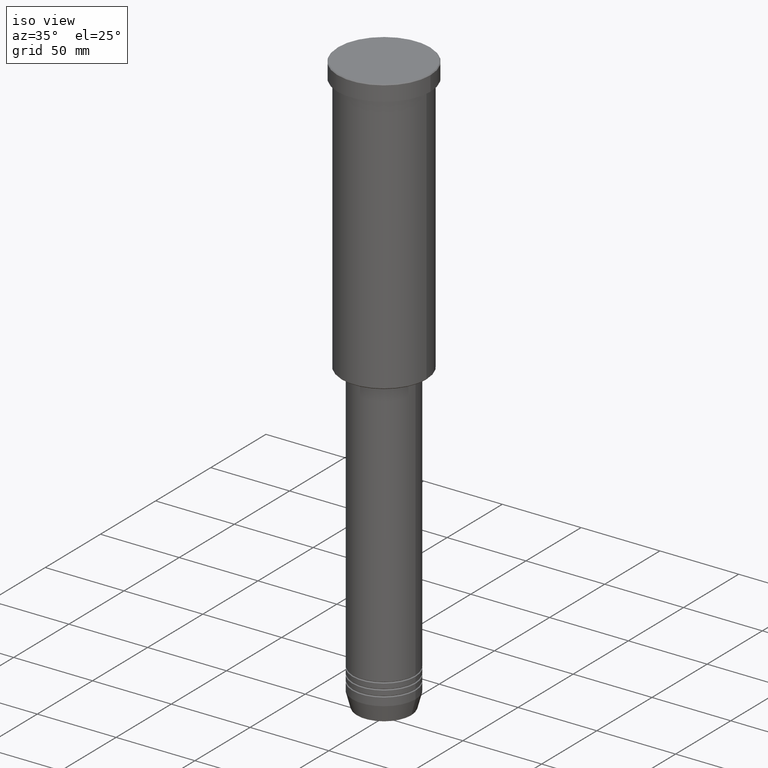
[diagram: clean part render]
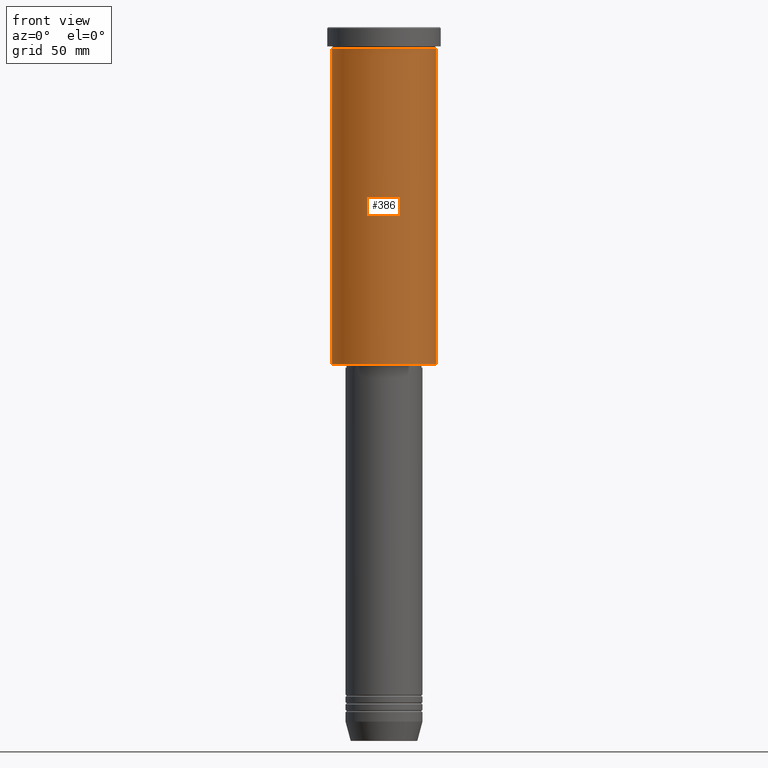
[diagram: tour spotlight — one face highlighted and labeled with its STEP entity id]
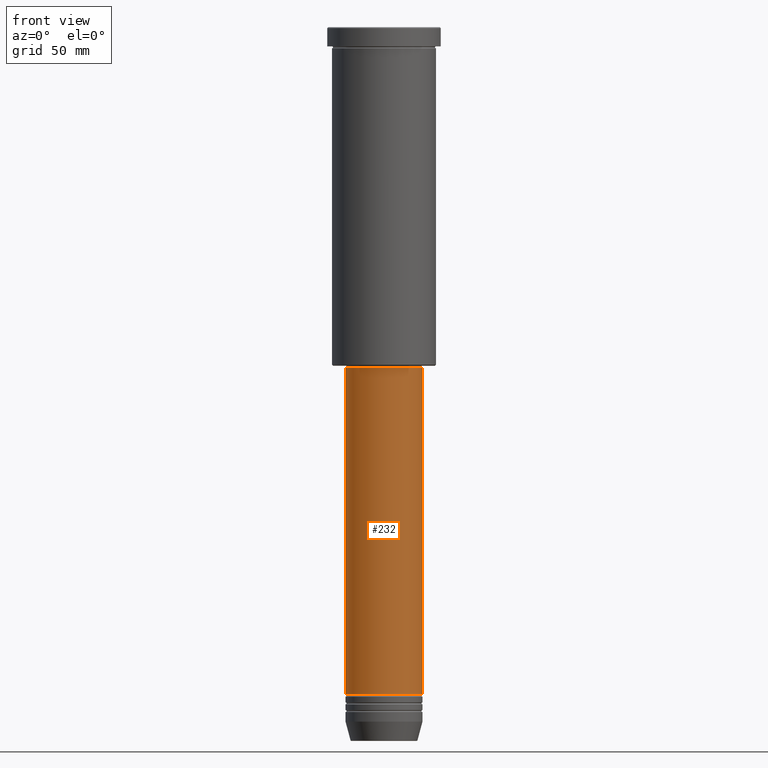
[diagram: tour spotlight — one face highlighted and labeled with its STEP entity id]
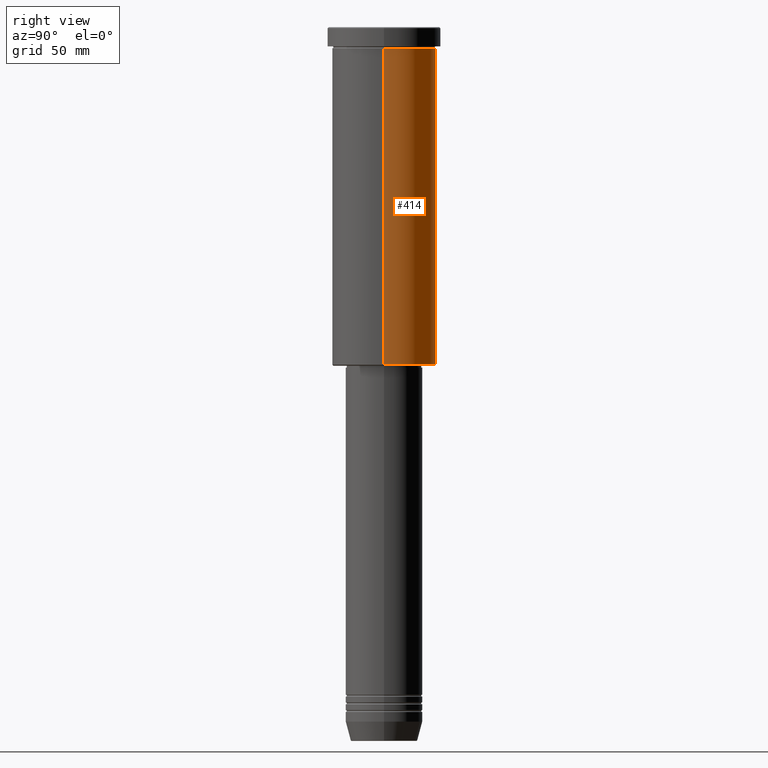
[diagram: tour spotlight — one face highlighted and labeled with its STEP entity id]
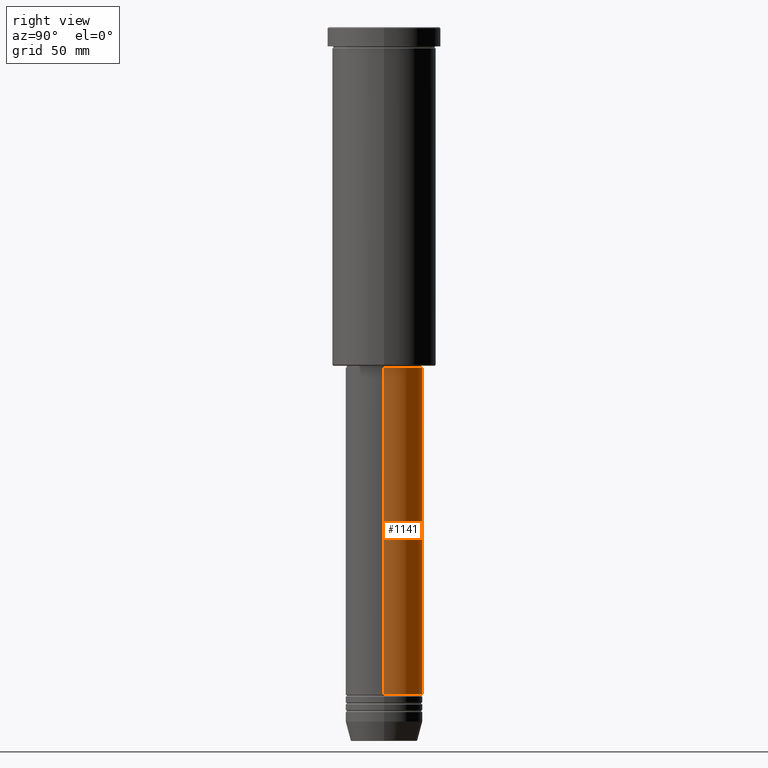
[diagram: tour spotlight — one face highlighted and labeled with its STEP entity id]
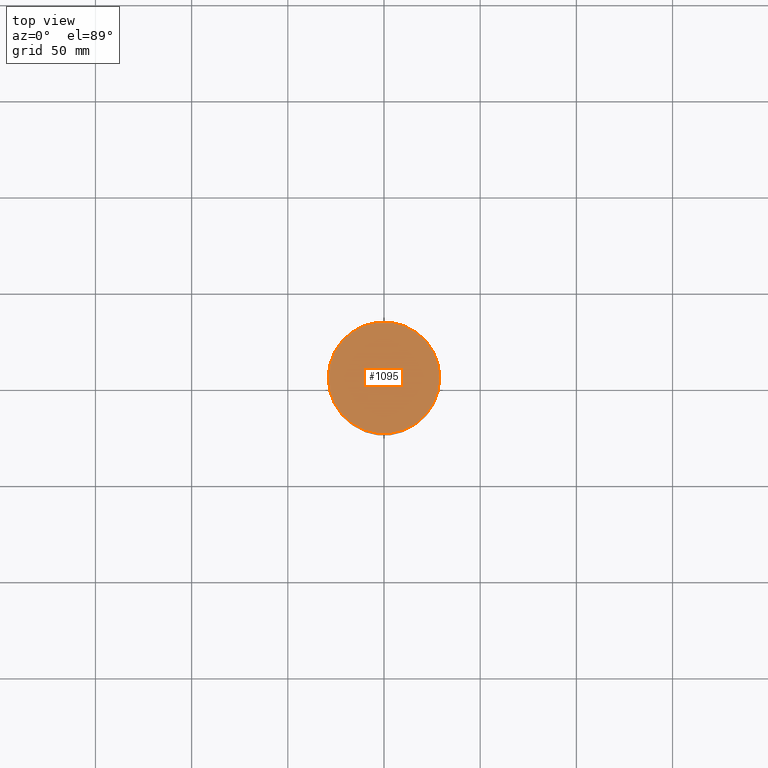
[diagram: tour spotlight — one face highlighted and labeled with its STEP entity id]
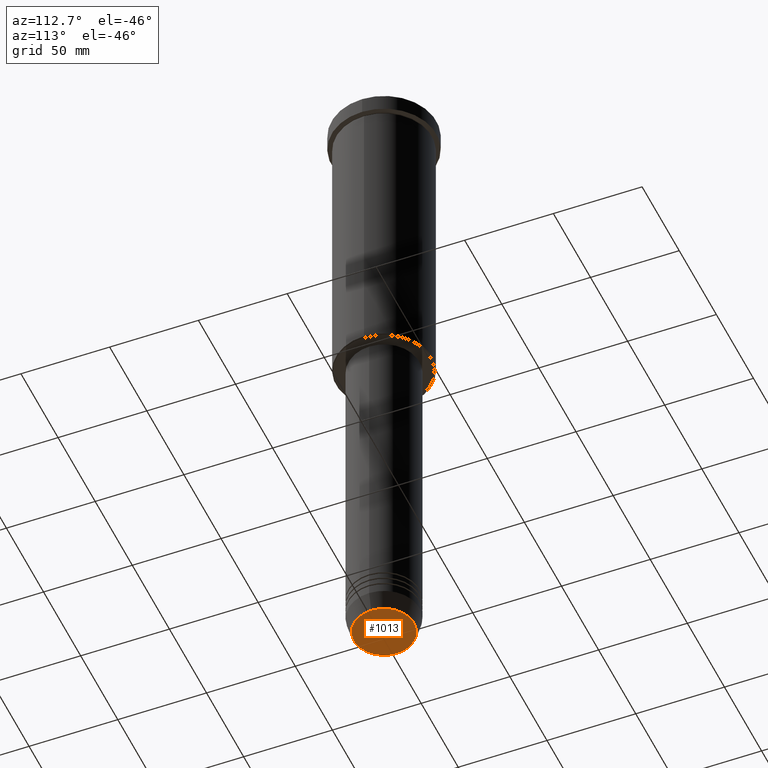
[diagram: tour spotlight — one face highlighted and labeled with its STEP entity id]
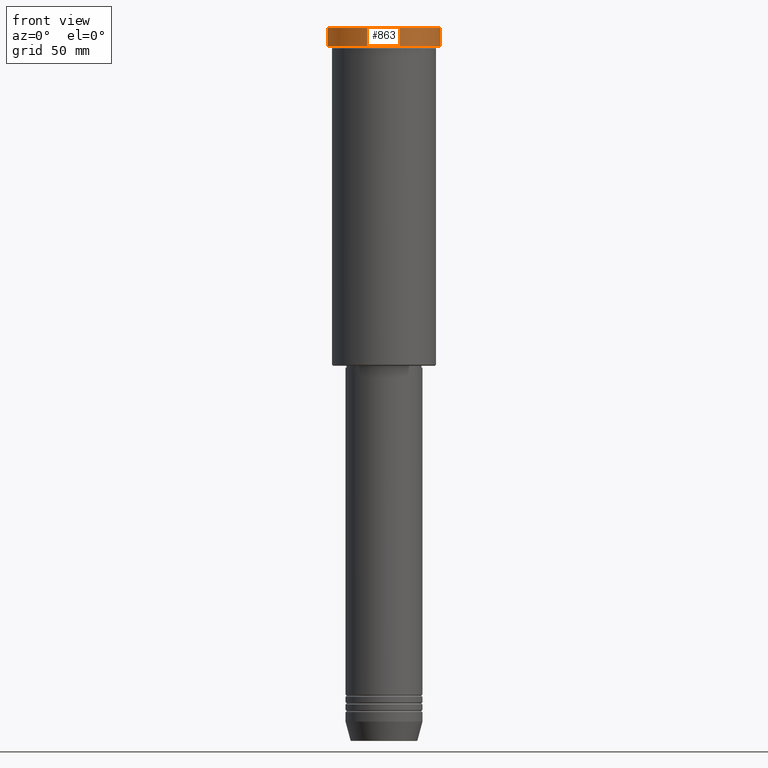
[diagram: tour spotlight — one face highlighted and labeled with its STEP entity id]
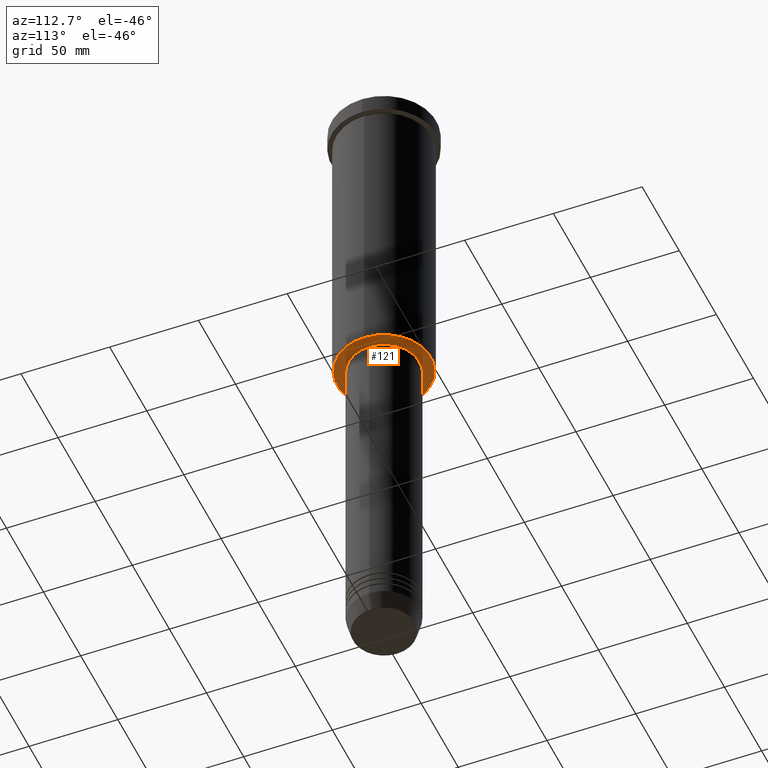
[diagram: tour spotlight — one face highlighted and labeled with its STEP entity id]
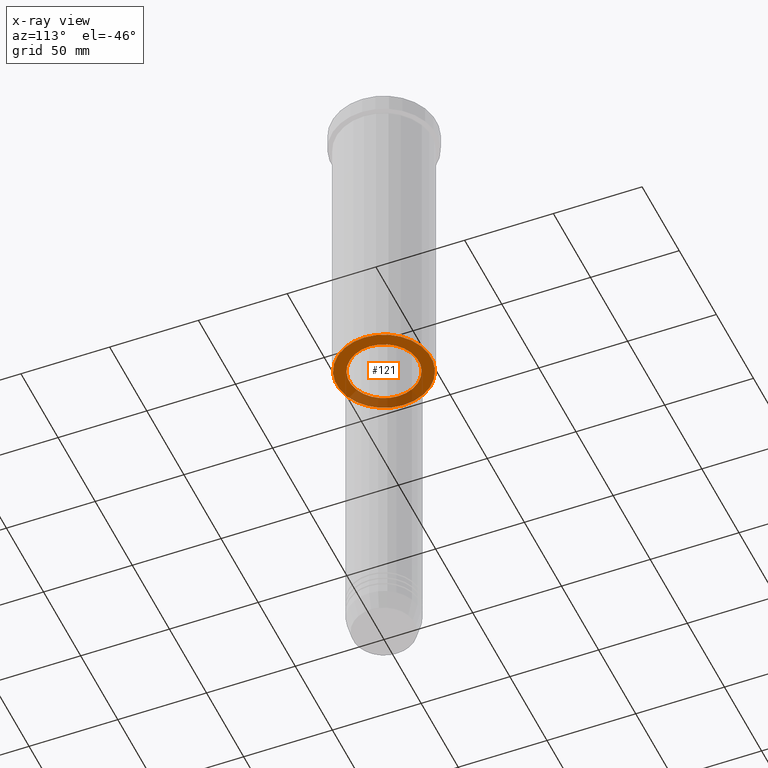
[diagram: x-ray of the same camera — body ghosted, this tour face saturated]
A machine part: a face-by-face anatomy tour. The part has 43 B-rep faces; the first image is the clean iso view, then the 8 largest visible faces are spotlighted one at a time (largest first), each with its STEP entity span.

Face 1 — front view, entity #386. In plain terms, the highlighted cylindrical surface (partial cylindrical patch) has radius 27 mm, axis along (-0, -0, 1).
Definition (entity closure, byte-faithful):
#10 = CARTESIAN_POINT ( 'NONE',  ( 0.000000000000000000, 0.000000000000000000, -175.4999999999999716 ) ) ;
#23 = CIRCLE ( 'NONE', #630, 27.00000000000000355 ) ;
#53 = VECTOR ( 'NONE', #1098, 1000.000000000000000 ) ;
#78 = VERTEX_POINT ( 'NONE', #703 ) ;
#82 = VERTEX_POINT ( 'NONE', #619 ) ;
#140 = CIRCLE ( 'NONE', #791, 27.00000000000000355 ) ;
#202 = FACE_OUTER_BOUND ( 'NONE', #883, .T. ) ;
#274 = ORIENTED_EDGE ( 'NONE', *, *, #714, .T. ) ;
#314 = DIRECTION ( 'NONE',  ( -0.000000000000000000, -0.000000000000000000, 1.000000000000000000 ) ) ;
#319 = AXIS2_PLACEMENT_3D ( 'NONE', #1091, #314, #1002 ) ;
#362 = DIRECTION ( 'NONE',  ( -0.000000000000000000, -0.000000000000000000, 1.000000000000000000 ) ) ;
#383 = LINE ( 'NONE', #734, #53 ) ;
#386 = ADVANCED_FACE ( 'NONE', ( #202 ), #653, .T. ) ;
#427 = EDGE_CURVE ( 'NONE', #1161, #489, #383, .T. ) ;
#438 = VECTOR ( 'NONE', #902, 1000.000000000000000 ) ;
#444 = DIRECTION ( 'NONE',  ( 1.000000000000000000, 0.000000000000000000, 0.000000000000000000 ) ) ;
#474 = DIRECTION ( 'NONE',  ( -1.000000000000000000, 0.000000000000000000, 0.000000000000000000 ) ) ;
#489 = VERTEX_POINT ( 'NONE', #1021 ) ;
#561 = DIRECTION ( 'NONE',  ( -0.000000000000000000, -0.000000000000000000, 1.000000000000000000 ) ) ;
#589 = ORIENTED_EDGE ( 'NONE', *, *, #427, .F. ) ;
#619 = CARTESIAN_POINT ( 'NONE',  ( 27.00000000000000355, 0.000000000000000000, -10.99999999999999289 ) ) ;
#630 = AXIS2_PLACEMENT_3D ( 'NONE', #1169, #362, #444 ) ;
#653 = CYLINDRICAL_SURFACE ( 'NONE', #319, 27.00000000000000355 ) ;
#703 = CARTESIAN_POINT ( 'NONE',  ( 27.00000000000000355, 0.000000000000000000, -175.4999999999999716 ) ) ;
#714 = EDGE_CURVE ( 'NONE', #1161, #78, #140, .T. ) ;
#729 = CARTESIAN_POINT ( 'NONE',  ( 27.00000000000000355, 0.000000000000000000, 0.000000000000000000 ) ) ;
#734 = CARTESIAN_POINT ( 'NONE',  ( -27.00000000000000355, 3.306546357697854128E-15, 0.000000000000000000 ) ) ;
#788 = EDGE_CURVE ( 'NONE', #78, #82, #867, .T. ) ;
#791 = AXIS2_PLACEMENT_3D ( 'NONE', #10, #561, #474 ) ;
#867 = LINE ( 'NONE', #729, #438 ) ;
#883 = EDGE_LOOP ( 'NONE', ( #589, #274, #1072, #1155 ) ) ;
#902 = DIRECTION ( 'NONE',  ( -0.000000000000000000, -0.000000000000000000, 1.000000000000000000 ) ) ;
#912 = CARTESIAN_POINT ( 'NONE',  ( -27.00000000000000355, 3.306546357697854128E-15, -175.4999999999999716 ) ) ;
#923 = EDGE_CURVE ( 'NONE', #489, #82, #23, .T. ) ;
#1002 = DIRECTION ( 'NONE',  ( 1.000000000000000000, 0.000000000000000000, 0.000000000000000000 ) ) ;
#1021 = CARTESIAN_POINT ( 'NONE',  ( -27.00000000000000355, 3.306546357697854128E-15, -10.99999999999999289 ) ) ;
#1072 = ORIENTED_EDGE ( 'NONE', *, *, #788, .T. ) ;
#1091 = CARTESIAN_POINT ( 'NONE',  ( 0.000000000000000000, 0.000000000000000000, 0.000000000000000000 ) ) ;
#1098 = DIRECTION ( 'NONE',  ( -0.000000000000000000, -0.000000000000000000, 1.000000000000000000 ) ) ;
#1155 = ORIENTED_EDGE ( 'NONE', *, *, #923, .F. ) ;
#1161 = VERTEX_POINT ( 'NONE', #912 ) ;
#1169 = CARTESIAN_POINT ( 'NONE',  ( 0.000000000000000000, 0.000000000000000000, -10.99999999999999289 ) ) ;

Face 2 — front view, entity #232. In plain terms, the highlighted cylindrical surface (partial cylindrical patch) has radius 20 mm, axis along (-0, -0, 1).
Definition (entity closure, byte-faithful):
#34 = CARTESIAN_POINT ( 'NONE',  ( -19.99999999999999645, 2.449293598294706119E-15, -176.9999999999999147 ) ) ;
#80 = DIRECTION ( 'NONE',  ( 1.000000000000000000, 0.000000000000000000, 0.000000000000000000 ) ) ;
#84 = ORIENTED_EDGE ( 'NONE', *, *, #1109, .F. ) ;
#111 = CARTESIAN_POINT ( 'NONE',  ( -19.99999999999999645, 2.449293598294706119E-15, 0.000000000000000000 ) ) ;
#127 = DIRECTION ( 'NONE',  ( -0.000000000000000000, -0.000000000000000000, 1.000000000000000000 ) ) ;
#158 = CYLINDRICAL_SURFACE ( 'NONE', #590, 19.99999999999999645 ) ;
#181 = CARTESIAN_POINT ( 'NONE',  ( 0.000000000000000000, 0.000000000000000000, 0.000000000000000000 ) ) ;
#215 = DIRECTION ( 'NONE',  ( -0.000000000000000000, -0.000000000000000000, 1.000000000000000000 ) ) ;
#216 = CARTESIAN_POINT ( 'NONE',  ( 0.000000000000000000, 0.000000000000000000, -176.9999999999999147 ) ) ;
#232 = ADVANCED_FACE ( 'NONE', ( #436 ), #158, .T. ) ;
#255 = CARTESIAN_POINT ( 'NONE',  ( 20.00000000000000000, 0.000000000000000000, -346.9999999999998863 ) ) ;
#300 = AXIS2_PLACEMENT_3D ( 'NONE', #216, #127, #472 ) ;
#372 = CIRCLE ( 'NONE', #1030, 20.00000000000000000 ) ;
#425 = VECTOR ( 'NONE', #1108, 1000.000000000000000 ) ;
#436 = FACE_OUTER_BOUND ( 'NONE', #733, .T. ) ;
#456 = EDGE_CURVE ( 'NONE', #959, #764, #660, .T. ) ;
#472 = DIRECTION ( 'NONE',  ( 1.000000000000000000, 0.000000000000000000, 0.000000000000000000 ) ) ;
#534 = CIRCLE ( 'NONE', #300, 19.99999999999999645 ) ;
#538 = DIRECTION ( 'NONE',  ( 1.000000000000000000, 0.000000000000000000, 0.000000000000000000 ) ) ;
#590 = AXIS2_PLACEMENT_3D ( 'NONE', #181, #978, #538 ) ;
#613 = ORIENTED_EDGE ( 'NONE', *, *, #1063, .F. ) ;
#617 = CARTESIAN_POINT ( 'NONE',  ( 0.000000000000000000, 0.000000000000000000, -346.9999999999998863 ) ) ;
#641 = ORIENTED_EDGE ( 'NONE', *, *, #456, .T. ) ;
#660 = LINE ( 'NONE', #1022, #721 ) ;
#721 = VECTOR ( 'NONE', #215, 1000.000000000000000 ) ;
#733 = EDGE_LOOP ( 'NONE', ( #613, #1016, #641, #84 ) ) ;
#764 = VERTEX_POINT ( 'NONE', #935 ) ;
#768 = VERTEX_POINT ( 'NONE', #34 ) ;
#935 = CARTESIAN_POINT ( 'NONE',  ( 19.99999999999999645, 0.000000000000000000, -176.9999999999999147 ) ) ;
#946 = VERTEX_POINT ( 'NONE', #1065 ) ;
#959 = VERTEX_POINT ( 'NONE', #255 ) ;
#973 = DIRECTION ( 'NONE',  ( -0.000000000000000000, -0.000000000000000000, 1.000000000000000000 ) ) ;
#978 = DIRECTION ( 'NONE',  ( -0.000000000000000000, -0.000000000000000000, 1.000000000000000000 ) ) ;
#1003 = LINE ( 'NONE', #111, #425 ) ;
#1016 = ORIENTED_EDGE ( 'NONE', *, *, #1020, .T. ) ;
#1020 = EDGE_CURVE ( 'NONE', #946, #959, #372, .T. ) ;
#1022 = CARTESIAN_POINT ( 'NONE',  ( 19.99999999999999645, 0.000000000000000000, 0.000000000000000000 ) ) ;
#1030 = AXIS2_PLACEMENT_3D ( 'NONE', #617, #973, #80 ) ;
#1063 = EDGE_CURVE ( 'NONE', #946, #768, #1003, .T. ) ;
#1065 = CARTESIAN_POINT ( 'NONE',  ( -20.00000000000000000, 2.449293598294706513E-15, -346.9999999999998863 ) ) ;
#1108 = DIRECTION ( 'NONE',  ( -0.000000000000000000, -0.000000000000000000, 1.000000000000000000 ) ) ;
#1109 = EDGE_CURVE ( 'NONE', #768, #764, #534, .T. ) ;

Face 3 — right view, entity #414. In plain terms, the highlighted cylindrical surface (partial cylindrical patch) has radius 27 mm, axis along (-0, -0, 1).
Definition (entity closure, byte-faithful):
#53 = VECTOR ( 'NONE', #1098, 1000.000000000000000 ) ;
#78 = VERTEX_POINT ( 'NONE', #703 ) ;
#82 = VERTEX_POINT ( 'NONE', #619 ) ;
#97 = CARTESIAN_POINT ( 'NONE',  ( 0.000000000000000000, 0.000000000000000000, -10.99999999999999289 ) ) ;
#137 = ORIENTED_EDGE ( 'NONE', *, *, #618, .T. ) ;
#151 = AXIS2_PLACEMENT_3D ( 'NONE', #97, #271, #545 ) ;
#167 = EDGE_CURVE ( 'NONE', #82, #489, #647, .T. ) ;
#198 = CIRCLE ( 'NONE', #683, 27.00000000000000355 ) ;
#271 = DIRECTION ( 'NONE',  ( -0.000000000000000000, -0.000000000000000000, 1.000000000000000000 ) ) ;
#339 = DIRECTION ( 'NONE',  ( -0.000000000000000000, -0.000000000000000000, 1.000000000000000000 ) ) ;
#383 = LINE ( 'NONE', #734, #53 ) ;
#396 = FACE_OUTER_BOUND ( 'NONE', #581, .T. ) ;
#414 = ADVANCED_FACE ( 'NONE', ( #396 ), #823, .T. ) ;
#427 = EDGE_CURVE ( 'NONE', #1161, #489, #383, .T. ) ;
#438 = VECTOR ( 'NONE', #902, 1000.000000000000000 ) ;
#489 = VERTEX_POINT ( 'NONE', #1021 ) ;
#490 = CARTESIAN_POINT ( 'NONE',  ( 0.000000000000000000, 0.000000000000000000, 0.000000000000000000 ) ) ;
#545 = DIRECTION ( 'NONE',  ( 1.000000000000000000, 0.000000000000000000, 0.000000000000000000 ) ) ;
#581 = EDGE_LOOP ( 'NONE', ( #137, #757, #878, #1154 ) ) ;
#586 = DIRECTION ( 'NONE',  ( -1.000000000000000000, 0.000000000000000000, 0.000000000000000000 ) ) ;
#618 = EDGE_CURVE ( 'NONE', #78, #1161, #198, .T. ) ;
#619 = CARTESIAN_POINT ( 'NONE',  ( 27.00000000000000355, 0.000000000000000000, -10.99999999999999289 ) ) ;
#647 = CIRCLE ( 'NONE', #151, 27.00000000000000355 ) ;
#683 = AXIS2_PLACEMENT_3D ( 'NONE', #766, #339, #586 ) ;
#703 = CARTESIAN_POINT ( 'NONE',  ( 27.00000000000000355, 0.000000000000000000, -175.4999999999999716 ) ) ;
#729 = CARTESIAN_POINT ( 'NONE',  ( 27.00000000000000355, 0.000000000000000000, 0.000000000000000000 ) ) ;
#734 = CARTESIAN_POINT ( 'NONE',  ( -27.00000000000000355, 3.306546357697854128E-15, 0.000000000000000000 ) ) ;
#757 = ORIENTED_EDGE ( 'NONE', *, *, #427, .T. ) ;
#766 = CARTESIAN_POINT ( 'NONE',  ( 0.000000000000000000, 0.000000000000000000, -175.4999999999999716 ) ) ;
#788 = EDGE_CURVE ( 'NONE', #78, #82, #867, .T. ) ;
#823 = CYLINDRICAL_SURFACE ( 'NONE', #985, 27.00000000000000355 ) ;
#850 = DIRECTION ( 'NONE',  ( -0.000000000000000000, -0.000000000000000000, 1.000000000000000000 ) ) ;
#867 = LINE ( 'NONE', #729, #438 ) ;
#878 = ORIENTED_EDGE ( 'NONE', *, *, #167, .F. ) ;
#902 = DIRECTION ( 'NONE',  ( -0.000000000000000000, -0.000000000000000000, 1.000000000000000000 ) ) ;
#912 = CARTESIAN_POINT ( 'NONE',  ( -27.00000000000000355, 3.306546357697854128E-15, -175.4999999999999716 ) ) ;
#921 = DIRECTION ( 'NONE',  ( 1.000000000000000000, 0.000000000000000000, 0.000000000000000000 ) ) ;
#985 = AXIS2_PLACEMENT_3D ( 'NONE', #490, #850, #921 ) ;
#1021 = CARTESIAN_POINT ( 'NONE',  ( -27.00000000000000355, 3.306546357697854128E-15, -10.99999999999999289 ) ) ;
#1098 = DIRECTION ( 'NONE',  ( -0.000000000000000000, -0.000000000000000000, 1.000000000000000000 ) ) ;
#1154 = ORIENTED_EDGE ( 'NONE', *, *, #788, .F. ) ;
#1161 = VERTEX_POINT ( 'NONE', #912 ) ;

Face 4 — right view, entity #1141. In plain terms, the highlighted cylindrical surface (partial cylindrical patch) has radius 20 mm, axis along (-0, -0, 1).
Definition (entity closure, byte-faithful):
#2 = DIRECTION ( 'NONE',  ( -0.000000000000000000, -0.000000000000000000, 1.000000000000000000 ) ) ;
#34 = CARTESIAN_POINT ( 'NONE',  ( -19.99999999999999645, 2.449293598294706119E-15, -176.9999999999999147 ) ) ;
#36 = EDGE_CURVE ( 'NONE', #959, #946, #571, .T. ) ;
#88 = DIRECTION ( 'NONE',  ( -0.000000000000000000, -0.000000000000000000, 1.000000000000000000 ) ) ;
#111 = CARTESIAN_POINT ( 'NONE',  ( -19.99999999999999645, 2.449293598294706119E-15, 0.000000000000000000 ) ) ;
#132 = FACE_OUTER_BOUND ( 'NONE', #320, .T. ) ;
#139 = DIRECTION ( 'NONE',  ( -0.000000000000000000, -0.000000000000000000, 1.000000000000000000 ) ) ;
#141 = CIRCLE ( 'NONE', #297, 19.99999999999999645 ) ;
#215 = DIRECTION ( 'NONE',  ( -0.000000000000000000, -0.000000000000000000, 1.000000000000000000 ) ) ;
#234 = ORIENTED_EDGE ( 'NONE', *, *, #36, .T. ) ;
#255 = CARTESIAN_POINT ( 'NONE',  ( 20.00000000000000000, 0.000000000000000000, -346.9999999999998863 ) ) ;
#297 = AXIS2_PLACEMENT_3D ( 'NONE', #910, #2, #979 ) ;
#320 = EDGE_LOOP ( 'NONE', ( #234, #504, #731, #509 ) ) ;
#340 = DIRECTION ( 'NONE',  ( 1.000000000000000000, 0.000000000000000000, 0.000000000000000000 ) ) ;
#425 = VECTOR ( 'NONE', #1108, 1000.000000000000000 ) ;
#456 = EDGE_CURVE ( 'NONE', #959, #764, #660, .T. ) ;
#502 = DIRECTION ( 'NONE',  ( 1.000000000000000000, 0.000000000000000000, 0.000000000000000000 ) ) ;
#504 = ORIENTED_EDGE ( 'NONE', *, *, #1063, .T. ) ;
#509 = ORIENTED_EDGE ( 'NONE', *, *, #456, .F. ) ;
#571 = CIRCLE ( 'NONE', #1158, 20.00000000000000000 ) ;
#660 = LINE ( 'NONE', #1022, #721 ) ;
#721 = VECTOR ( 'NONE', #215, 1000.000000000000000 ) ;
#731 = ORIENTED_EDGE ( 'NONE', *, *, #981, .F. ) ;
#764 = VERTEX_POINT ( 'NONE', #935 ) ;
#768 = VERTEX_POINT ( 'NONE', #34 ) ;
#864 = CARTESIAN_POINT ( 'NONE',  ( 0.000000000000000000, 0.000000000000000000, 0.000000000000000000 ) ) ;
#893 = AXIS2_PLACEMENT_3D ( 'NONE', #864, #139, #502 ) ;
#910 = CARTESIAN_POINT ( 'NONE',  ( 0.000000000000000000, 0.000000000000000000, -176.9999999999999147 ) ) ;
#935 = CARTESIAN_POINT ( 'NONE',  ( 19.99999999999999645, 0.000000000000000000, -176.9999999999999147 ) ) ;
#946 = VERTEX_POINT ( 'NONE', #1065 ) ;
#959 = VERTEX_POINT ( 'NONE', #255 ) ;
#979 = DIRECTION ( 'NONE',  ( 1.000000000000000000, 0.000000000000000000, 0.000000000000000000 ) ) ;
#981 = EDGE_CURVE ( 'NONE', #764, #768, #141, .T. ) ;
#1003 = LINE ( 'NONE', #111, #425 ) ;
#1022 = CARTESIAN_POINT ( 'NONE',  ( 19.99999999999999645, 0.000000000000000000, 0.000000000000000000 ) ) ;
#1063 = EDGE_CURVE ( 'NONE', #946, #768, #1003, .T. ) ;
#1065 = CARTESIAN_POINT ( 'NONE',  ( -20.00000000000000000, 2.449293598294706513E-15, -346.9999999999998863 ) ) ;
#1108 = DIRECTION ( 'NONE',  ( -0.000000000000000000, -0.000000000000000000, 1.000000000000000000 ) ) ;
#1141 = ADVANCED_FACE ( 'NONE', ( #132 ), #1146, .T. ) ;
#1146 = CYLINDRICAL_SURFACE ( 'NONE', #893, 19.99999999999999645 ) ;
#1158 = AXIS2_PLACEMENT_3D ( 'NONE', #1175, #88, #340 ) ;
#1175 = CARTESIAN_POINT ( 'NONE',  ( 0.000000000000000000, 0.000000000000000000, -346.9999999999998863 ) ) ;

Face 5 — top view, entity #1095. In plain terms, the highlighted planar face has unit normal (0, -0, 1).
Definition (entity closure, byte-faithful):
#15 = CARTESIAN_POINT ( 'NONE',  ( 29.00000000000002487, 3.582091887506009394E-15, 0.000000000000000000 ) ) ;
#35 = DIRECTION ( 'NONE',  ( 1.000000000000000000, 0.000000000000000000, 0.000000000000000000 ) ) ;
#194 = FACE_OUTER_BOUND ( 'NONE', #402, .T. ) ;
#199 = CIRCLE ( 'NONE', #423, 29.00000000000002487 ) ;
#356 = EDGE_CURVE ( 'NONE', #1101, #1032, #773, .T. ) ;
#402 = EDGE_LOOP ( 'NONE', ( #704, #1088 ) ) ;
#423 = AXIS2_PLACEMENT_3D ( 'NONE', #1035, #467, #846 ) ;
#459 = AXIS2_PLACEMENT_3D ( 'NONE', #664, #551, #35 ) ;
#467 = DIRECTION ( 'NONE',  ( -0.000000000000000000, -0.000000000000000000, 1.000000000000000000 ) ) ;
#551 = DIRECTION ( 'NONE',  ( 0.000000000000000000, -0.000000000000000000, 1.000000000000000000 ) ) ;
#642 = CARTESIAN_POINT ( 'NONE',  ( 0.000000000000000000, 0.000000000000000000, 0.000000000000000000 ) ) ;
#664 = CARTESIAN_POINT ( 'NONE',  ( 0.000000000000000000, 0.000000000000000000, 0.000000000000000000 ) ) ;
#704 = ORIENTED_EDGE ( 'NONE', *, *, #356, .T. ) ;
#765 = EDGE_CURVE ( 'NONE', #1032, #1101, #199, .T. ) ;
#773 = CIRCLE ( 'NONE', #933, 29.00000000000002487 ) ;
#846 = DIRECTION ( 'NONE',  ( 1.000000000000000000, 0.000000000000000000, 0.000000000000000000 ) ) ;
#933 = AXIS2_PLACEMENT_3D ( 'NONE', #642, #1026, #1114 ) ;
#942 = PLANE ( 'NONE',  #459 ) ;
#1026 = DIRECTION ( 'NONE',  ( -0.000000000000000000, -0.000000000000000000, 1.000000000000000000 ) ) ;
#1032 = VERTEX_POINT ( 'NONE', #15 ) ;
#1035 = CARTESIAN_POINT ( 'NONE',  ( 0.000000000000000000, 0.000000000000000000, 0.000000000000000000 ) ) ;
#1088 = ORIENTED_EDGE ( 'NONE', *, *, #765, .T. ) ;
#1095 = ADVANCED_FACE ( 'NONE', ( #194 ), #942, .T. ) ;
#1101 = VERTEX_POINT ( 'NONE', #1115 ) ;
#1114 = DIRECTION ( 'NONE',  ( 1.000000000000000000, 0.000000000000000000, 0.000000000000000000 ) ) ;
#1115 = CARTESIAN_POINT ( 'NONE',  ( -29.00000000000002487, 0.000000000000000000, 0.000000000000000000 ) ) ;

Face 6 — auxiliary view, entity #1013. In plain terms, the highlighted planar face has unit normal (0, -0, 1).
Definition (entity closure, byte-faithful):
#67 = VERTEX_POINT ( 'NONE', #877 ) ;
#112 = DIRECTION ( 'NONE',  ( 1.000000000000000000, 0.000000000000000000, 0.000000000000000000 ) ) ;
#155 = ORIENTED_EDGE ( 'NONE', *, *, #363, .T. ) ;
#172 = CARTESIAN_POINT ( 'NONE',  ( 0.000000000000000000, 0.000000000000000000, -371.0000000000000000 ) ) ;
#261 = PLANE ( 'NONE',  #1082 ) ;
#266 = FACE_OUTER_BOUND ( 'NONE', #354, .T. ) ;
#286 = DIRECTION ( 'NONE',  ( 0.000000000000000000, 0.000000000000000000, -1.000000000000000000 ) ) ;
#316 = DIRECTION ( 'NONE',  ( 0.000000000000000000, 0.000000000000000000, -1.000000000000000000 ) ) ;
#354 = EDGE_LOOP ( 'NONE', ( #155, #451 ) ) ;
#359 = CARTESIAN_POINT ( 'NONE',  ( 0.000000000000000000, 0.000000000000000000, -371.0000000000000000 ) ) ;
#363 = EDGE_CURVE ( 'NONE', #67, #673, #573, .T. ) ;
#451 = ORIENTED_EDGE ( 'NONE', *, *, #844, .T. ) ;
#476 = CARTESIAN_POINT ( 'NONE',  ( 0.000000000000000000, 0.000000000000000000, -371.0000000000000000 ) ) ;
#503 = CARTESIAN_POINT ( 'NONE',  ( -16.93684458169928675, 2.103738199747889592E-15, -371.0000000000000000 ) ) ;
#550 = DIRECTION ( 'NONE',  ( 1.000000000000000000, 0.000000000000000000, 0.000000000000000000 ) ) ;
#573 = CIRCLE ( 'NONE', #1077, 16.93684458169928675 ) ;
#575 = AXIS2_PLACEMENT_3D ( 'NONE', #359, #316, #112 ) ;
#673 = VERTEX_POINT ( 'NONE', #503 ) ;
#775 = CIRCLE ( 'NONE', #575, 16.93684458169928675 ) ;
#844 = EDGE_CURVE ( 'NONE', #673, #67, #775, .T. ) ;
#877 = CARTESIAN_POINT ( 'NONE',  ( 16.93684458169928675, 0.000000000000000000, -371.0000000000000000 ) ) ;
#894 = DIRECTION ( 'NONE',  ( 0.000000000000000000, -0.000000000000000000, 1.000000000000000000 ) ) ;
#1013 = ADVANCED_FACE ( 'NONE', ( #266 ), #261, .F. ) ;
#1077 = AXIS2_PLACEMENT_3D ( 'NONE', #476, #286, #550 ) ;
#1082 = AXIS2_PLACEMENT_3D ( 'NONE', #172, #894, #1157 ) ;
#1157 = DIRECTION ( 'NONE',  ( 1.000000000000000000, 0.000000000000000000, 0.000000000000000000 ) ) ;

Face 7 — front view, entity #863. In plain terms, the highlighted cylindrical surface (partial cylindrical patch) has radius 29.5 mm, axis along (-0, -0, 1).
Definition (entity closure, byte-faithful):
#25 = CARTESIAN_POINT ( 'NONE',  ( 0.000000000000000000, 0.000000000000000000, 0.000000000000000000 ) ) ;
#33 = FACE_OUTER_BOUND ( 'NONE', #187, .T. ) ;
#71 = VECTOR ( 'NONE', #972, 1000.000000000000000 ) ;
#75 = AXIS2_PLACEMENT_3D ( 'NONE', #754, #226, #1117 ) ;
#164 = VERTEX_POINT ( 'NONE', #280 ) ;
#187 = EDGE_LOOP ( 'NONE', ( #1058, #250, #332, #492 ) ) ;
#221 = CIRCLE ( 'NONE', #455, 29.50000000000000000 ) ;
#222 = CARTESIAN_POINT ( 'NONE',  ( -29.50000000000000000, 3.612708057484691604E-15, -0.5000000000000004441 ) ) ;
#226 = DIRECTION ( 'NONE',  ( -0.000000000000000000, -0.000000000000000000, 1.000000000000000000 ) ) ;
#241 = CIRCLE ( 'NONE', #75, 29.50000000000000000 ) ;
#244 = EDGE_CURVE ( 'NONE', #951, #365, #1168, .T. ) ;
#250 = ORIENTED_EDGE ( 'NONE', *, *, #762, .T. ) ;
#279 = CARTESIAN_POINT ( 'NONE',  ( -29.50000000000000000, 3.612708057484691604E-15, 0.000000000000000000 ) ) ;
#280 = CARTESIAN_POINT ( 'NONE',  ( 29.50000000000000000, 0.000000000000000000, -9.999999999999992895 ) ) ;
#332 = ORIENTED_EDGE ( 'NONE', *, *, #725, .T. ) ;
#365 = VERTEX_POINT ( 'NONE', #222 ) ;
#400 = DIRECTION ( 'NONE',  ( 1.000000000000000000, 0.000000000000000000, 0.000000000000000000 ) ) ;
#407 = DIRECTION ( 'NONE',  ( -0.000000000000000000, -0.000000000000000000, 1.000000000000000000 ) ) ;
#455 = AXIS2_PLACEMENT_3D ( 'NONE', #599, #747, #400 ) ;
#482 = AXIS2_PLACEMENT_3D ( 'NONE', #25, #407, #753 ) ;
#492 = ORIENTED_EDGE ( 'NONE', *, *, #511, .T. ) ;
#511 = EDGE_CURVE ( 'NONE', #1132, #365, #221, .T. ) ;
#565 = CARTESIAN_POINT ( 'NONE',  ( 29.50000000000000000, 0.000000000000000000, -0.5000000000000004441 ) ) ;
#567 = CARTESIAN_POINT ( 'NONE',  ( 29.50000000000000000, 0.000000000000000000, 0.000000000000000000 ) ) ;
#579 = DIRECTION ( 'NONE',  ( -0.000000000000000000, -0.000000000000000000, 1.000000000000000000 ) ) ;
#599 = CARTESIAN_POINT ( 'NONE',  ( 0.000000000000000000, 0.000000000000000000, -0.5000000000000004441 ) ) ;
#699 = VECTOR ( 'NONE', #579, 1000.000000000000000 ) ;
#725 = EDGE_CURVE ( 'NONE', #164, #1132, #1031, .T. ) ;
#747 = DIRECTION ( 'NONE',  ( 0.000000000000000000, 0.000000000000000000, -1.000000000000000000 ) ) ;
#753 = DIRECTION ( 'NONE',  ( 1.000000000000000000, 0.000000000000000000, 0.000000000000000000 ) ) ;
#754 = CARTESIAN_POINT ( 'NONE',  ( 0.000000000000000000, 0.000000000000000000, -9.999999999999992895 ) ) ;
#762 = EDGE_CURVE ( 'NONE', #951, #164, #241, .T. ) ;
#836 = CYLINDRICAL_SURFACE ( 'NONE', #482, 29.50000000000000000 ) ;
#863 = ADVANCED_FACE ( 'NONE', ( #33 ), #836, .T. ) ;
#901 = CARTESIAN_POINT ( 'NONE',  ( -29.50000000000000000, 3.612708057484691604E-15, -9.999999999999992895 ) ) ;
#951 = VERTEX_POINT ( 'NONE', #901 ) ;
#972 = DIRECTION ( 'NONE',  ( -0.000000000000000000, -0.000000000000000000, 1.000000000000000000 ) ) ;
#1031 = LINE ( 'NONE', #567, #699 ) ;
#1058 = ORIENTED_EDGE ( 'NONE', *, *, #244, .F. ) ;
#1117 = DIRECTION ( 'NONE',  ( 1.000000000000000000, 0.000000000000000000, 0.000000000000000000 ) ) ;
#1132 = VERTEX_POINT ( 'NONE', #565 ) ;
#1168 = LINE ( 'NONE', #279, #71 ) ;

Face 8 — auxiliary view, entity #121. An x-ray twin of the same camera follows (body ghosted, this face saturated) — the face is partly hidden behind the body. In plain terms, the highlighted planar face has unit normal (0, 0, -1).
Definition (entity closure, byte-faithful):
#9 = CARTESIAN_POINT ( 'NONE',  ( 19.50000000000000000, 0.000000000000000000, -175.9999999999999716 ) ) ;
#21 = EDGE_CURVE ( 'NONE', #939, #90, #70, .T. ) ;
#27 = PLANE ( 'NONE',  #790 ) ;
#28 = DIRECTION ( 'NONE',  ( -1.000000000000000000, 0.000000000000000000, 0.000000000000000000 ) ) ;
#70 = CIRCLE ( 'NONE', #346, 19.50000000000000000 ) ;
#90 = VERTEX_POINT ( 'NONE', #9 ) ;
#92 = EDGE_LOOP ( 'NONE', ( #549, #374 ) ) ;
#107 = CARTESIAN_POINT ( 'NONE',  ( 0.000000000000000000, 0.000000000000000000, -176.0000000000000000 ) ) ;
#108 = EDGE_CURVE ( 'NONE', #90, #939, #682, .T. ) ;
#121 = ADVANCED_FACE ( 'NONE', ( #560, #735 ), #27, .T. ) ;
#134 = VERTEX_POINT ( 'NONE', #211 ) ;
#175 = DIRECTION ( 'NONE',  ( 1.000000000000000000, 0.000000000000000000, 0.000000000000000000 ) ) ;
#180 = VERTEX_POINT ( 'NONE', #443 ) ;
#205 = DIRECTION ( 'NONE',  ( 1.000000000000000000, 0.000000000000000000, 0.000000000000000000 ) ) ;
#211 = CARTESIAN_POINT ( 'NONE',  ( 26.50000000000002487, 0.000000000000000000, -176.0000000000000000 ) ) ;
#217 = DIRECTION ( 'NONE',  ( 0.000000000000000000, 0.000000000000000000, -1.000000000000000000 ) ) ;
#269 = CARTESIAN_POINT ( 'NONE',  ( 0.000000000000000000, 0.000000000000000000, -175.9999999999999716 ) ) ;
#304 = DIRECTION ( 'NONE',  ( 0.000000000000000000, 0.000000000000000000, -1.000000000000000000 ) ) ;
#317 = EDGE_LOOP ( 'NONE', ( #858, #507 ) ) ;
#346 = AXIS2_PLACEMENT_3D ( 'NONE', #269, #976, #175 ) ;
#348 = AXIS2_PLACEMENT_3D ( 'NONE', #548, #830, #205 ) ;
#374 = ORIENTED_EDGE ( 'NONE', *, *, #739, .T. ) ;
#384 = DIRECTION ( 'NONE',  ( -1.000000000000000000, 0.000000000000000000, -0.000000000000000000 ) ) ;
#390 = CARTESIAN_POINT ( 'NONE',  ( 0.000000000000000000, 27.00000000000000355, -176.0000000000000000 ) ) ;
#422 = CARTESIAN_POINT ( 'NONE',  ( 0.000000000000000000, 0.000000000000000000, -176.0000000000000000 ) ) ;
#443 = CARTESIAN_POINT ( 'NONE',  ( -26.50000000000002487, 3.275930187719171524E-15, -176.0000000000000000 ) ) ;
#507 = ORIENTED_EDGE ( 'NONE', *, *, #21, .T. ) ;
#531 = CARTESIAN_POINT ( 'NONE',  ( -19.50000000000000000, 2.388061258337338939E-15, -175.9999999999999716 ) ) ;
#548 = CARTESIAN_POINT ( 'NONE',  ( 0.000000000000000000, 0.000000000000000000, -175.9999999999999716 ) ) ;
#549 = ORIENTED_EDGE ( 'NONE', *, *, #587, .T. ) ;
#560 = FACE_OUTER_BOUND ( 'NONE', #92, .T. ) ;
#574 = CIRCLE ( 'NONE', #913, 26.50000000000002487 ) ;
#587 = EDGE_CURVE ( 'NONE', #134, #180, #574, .T. ) ;
#593 = AXIS2_PLACEMENT_3D ( 'NONE', #107, #217, #28 ) ;
#675 = DIRECTION ( 'NONE',  ( 0.000000000000000000, 0.000000000000000000, -1.000000000000000000 ) ) ;
#682 = CIRCLE ( 'NONE', #348, 19.50000000000000000 ) ;
#735 = FACE_BOUND ( 'NONE', #317, .T. ) ;
#739 = EDGE_CURVE ( 'NONE', #180, #134, #915, .T. ) ;
#790 = AXIS2_PLACEMENT_3D ( 'NONE', #390, #304, #384 ) ;
#830 = DIRECTION ( 'NONE',  ( -0.000000000000000000, -0.000000000000000000, 1.000000000000000000 ) ) ;
#858 = ORIENTED_EDGE ( 'NONE', *, *, #108, .T. ) ;
#913 = AXIS2_PLACEMENT_3D ( 'NONE', #422, #675, #1147 ) ;
#915 = CIRCLE ( 'NONE', #593, 26.50000000000002487 ) ;
#939 = VERTEX_POINT ( 'NONE', #531 ) ;
#976 = DIRECTION ( 'NONE',  ( -0.000000000000000000, -0.000000000000000000, 1.000000000000000000 ) ) ;
#1147 = DIRECTION ( 'NONE',  ( -1.000000000000000000, 0.000000000000000000, 0.000000000000000000 ) ) ;